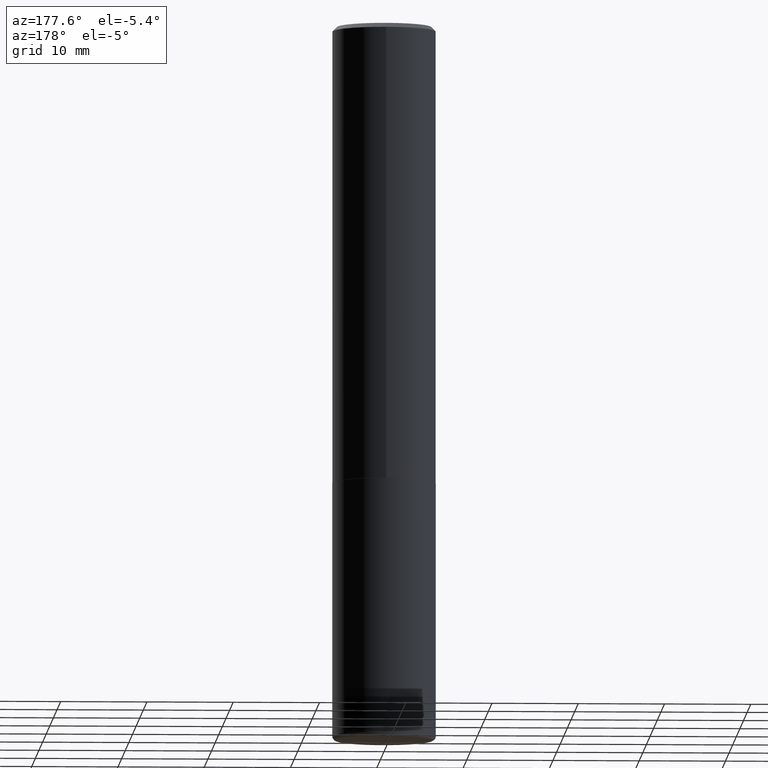
[diagram: clean part render]
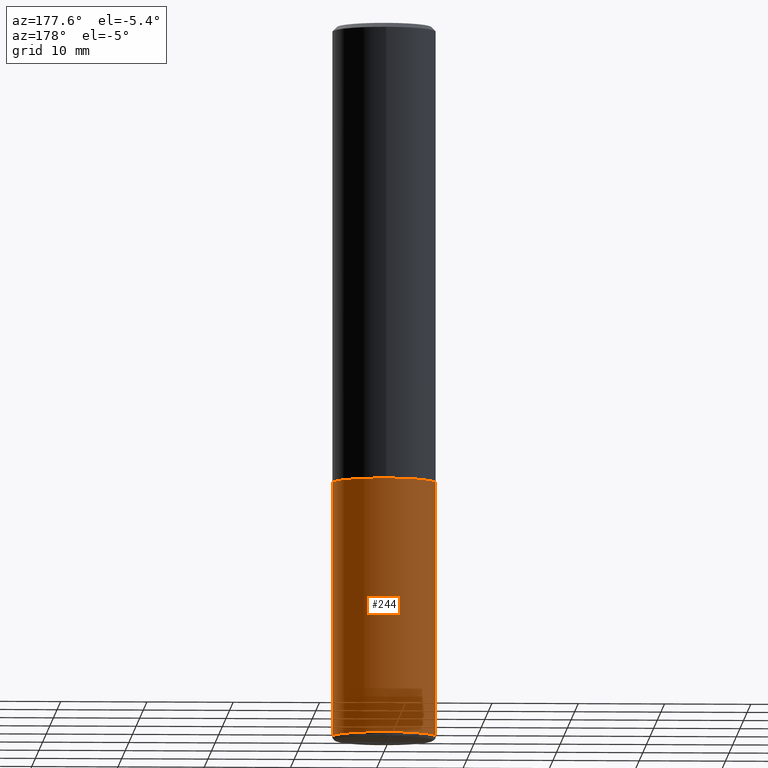
[diagram: same view with one face highlighted and labeled with its STEP entity id]
A machine part, auxiliary view. The second image highlights one B-rep face of the part: STEP entity #244.
In plain terms, the highlighted cylindrical surface (partial cylindrical patch) has radius 5.9995 mm, axis along (-0, 0, 1).
Its self-contained STEP definition (entity closure, byte-faithful):
#12 = VECTOR ( 'NONE', #373, 39.37007874015748143 ) ;
#25 = CARTESIAN_POINT ( 'NONE',  ( -0.2361999999999999933, -7.634526233230966520E-15, -2.086600000000000232 ) ) ;
#42 = LINE ( 'NONE', #212, #162 ) ;
#49 = CARTESIAN_POINT ( 'NONE',  ( 0.2361999999999999933, -1.649375784469496131E-15, 1.151752954443000088E-29 ) ) ;
#50 = CARTESIAN_POINT ( 'NONE',  ( -0.2362000000000000766, -9.662029446697182017E-15, -3.248000000000000220 ) ) ;
#54 = ORIENTED_EDGE ( 'NONE', *, *, #266, .F. ) ;
#57 = CARTESIAN_POINT ( 'NONE',  ( 7.942882682489324976E-29, -1.134033138856253841E-14, -3.248000000000000220 ) ) ;
#68 = FACE_OUTER_BOUND ( 'NONE', #110, .T. ) ;
#71 = CIRCLE ( 'NONE', #286, 0.2361999999999999933 ) ;
#94 = DIRECTION ( 'NONE',  ( 1.000000000000000000, -6.982962677686266711E-15, 4.876176775795936353E-29 ) ) ;
#107 = VERTEX_POINT ( 'NONE', #151 ) ;
#110 = EDGE_LOOP ( 'NONE', ( #401, #310, #54, #177 ) ) ;
#126 = VERTEX_POINT ( 'NONE', #50 ) ;
#142 = VERTEX_POINT ( 'NONE', #155 ) ;
#143 = DIRECTION ( 'NONE',  ( -2.445468806185136877E-29, 3.491481338843145188E-15, 1.000000000000000000 ) ) ;
#146 = LINE ( 'NONE', #49, #12 ) ;
#147 = CIRCLE ( 'NONE', #207, 0.2361999999999999933 ) ;
#151 = CARTESIAN_POINT ( 'NONE',  ( 0.2361999999999999933, -8.934700746099602364E-15, -2.086600000000000232 ) ) ;
#155 = CARTESIAN_POINT ( 'NONE',  ( 0.2362000000000000766, -1.298970717303203651E-14, -3.248000000000000220 ) ) ;
#162 = VECTOR ( 'NONE', #143, 39.37007874015748143 ) ;
#167 = DIRECTION ( 'NONE',  ( -2.445468806185136597E-29, 3.491481338843145583E-15, 1.000000000000000000 ) ) ;
#177 = ORIENTED_EDGE ( 'NONE', *, *, #406, .F. ) ;
#183 = EDGE_CURVE ( 'NONE', #142, #126, #71, .T. ) ;
#189 = DIRECTION ( 'NONE',  ( -2.445468806185136597E-29, 3.491481338843145583E-15, 1.000000000000000000 ) ) ;
#190 = VERTEX_POINT ( 'NONE', #25 ) ;
#207 = AXIS2_PLACEMENT_3D ( 'NONE', #324, #167, #356 ) ;
#212 = CARTESIAN_POINT ( 'NONE',  ( -0.2361999999999999933, 1.678301941865356591E-15, -1.161852468318208757E-29 ) ) ;
#244 = ADVANCED_FACE ( 'NONE', ( #68 ), #320, .T. ) ;
#266 = EDGE_CURVE ( 'NONE', #107, #190, #147, .T. ) ;
#273 = AXIS2_PLACEMENT_3D ( 'NONE', #397, #418, #94 ) ;
#286 = AXIS2_PLACEMENT_3D ( 'NONE', #57, #189, #312 ) ;
#310 = ORIENTED_EDGE ( 'NONE', *, *, #403, .T. ) ;
#312 = DIRECTION ( 'NONE',  ( 1.000000000000000000, -6.982962677686265133E-15, 0.000000000000000000 ) ) ;
#320 = CYLINDRICAL_SURFACE ( 'NONE', #273, 0.2361999999999999933 ) ;
#324 = CARTESIAN_POINT ( 'NONE',  ( 5.102715210985906276E-29, -7.285324961630107416E-15, -2.086600000000000232 ) ) ;
#356 = DIRECTION ( 'NONE',  ( 1.000000000000000000, -6.982962677686265133E-15, 0.000000000000000000 ) ) ;
#373 = DIRECTION ( 'NONE',  ( -2.445468806185136877E-29, 3.491481338843145188E-15, 1.000000000000000000 ) ) ;
#397 = CARTESIAN_POINT ( 'NONE',  ( 0.000000000000000000, 0.000000000000000000, 0.000000000000000000 ) ) ;
#401 = ORIENTED_EDGE ( 'NONE', *, *, #183, .T. ) ;
#403 = EDGE_CURVE ( 'NONE', #126, #190, #42, .T. ) ;
#406 = EDGE_CURVE ( 'NONE', #142, #107, #146, .T. ) ;
#418 = DIRECTION ( 'NONE',  ( -2.445468806185136597E-29, 3.491481338843145583E-15, 1.000000000000000000 ) ) ;